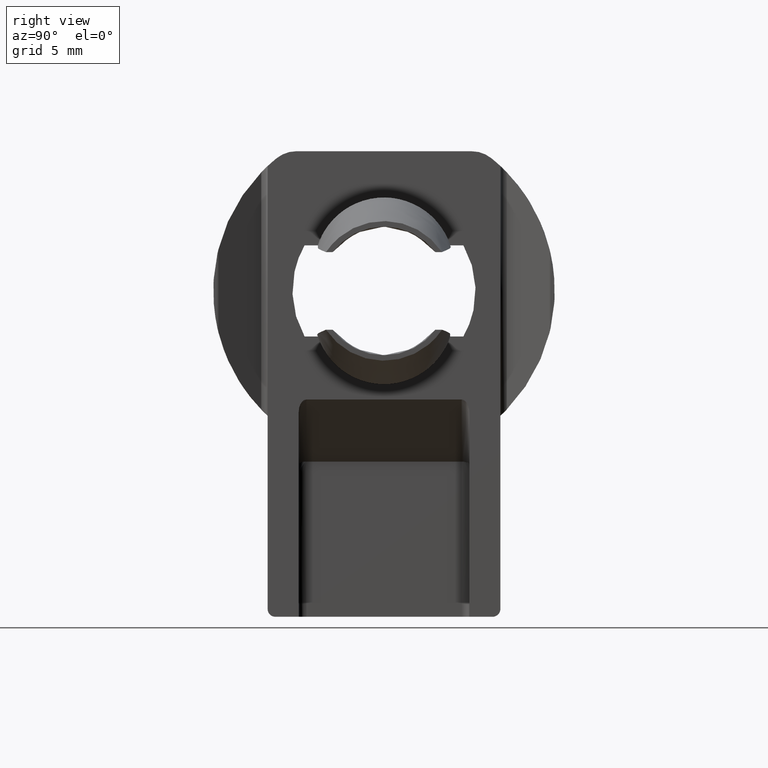
[diagram: clean part render]
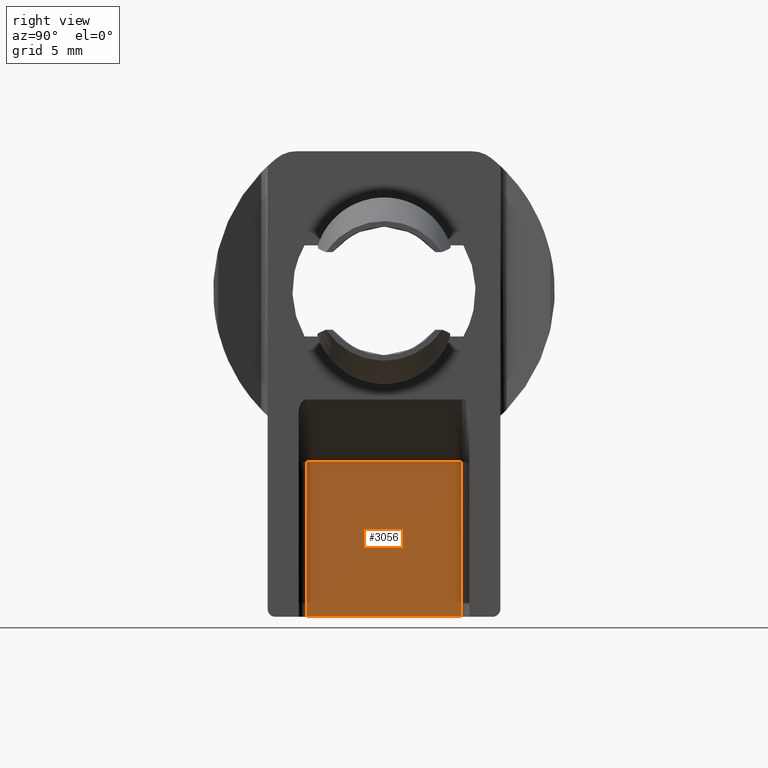
[diagram: same view with one face highlighted and labeled with its STEP entity id]
A machine part, right view. The second image highlights one B-rep face of the part: STEP entity #3056.
In plain terms, the highlighted face is a freeform B-spline surface patch.
Its self-contained STEP definition (entity closure, byte-faithful):
#1717=CARTESIAN_POINT('',(-3.0,-4.999999999999890,-11.0));
#1718=VERTEX_POINT('',#1717);
#1778=CARTESIAN_POINT('',(-3.0,-4.999999999999890,-21.0));
#1779=VERTEX_POINT('',#1778);
#1797=CARTESIAN_POINT('',(-3.0,-4.999999999999890,-11.0));
#1798=CARTESIAN_POINT('',(-3.0,-4.999999999999890,-21.0));
#1799=QUASI_UNIFORM_CURVE('',1,(#1797,#1798),.UNSPECIFIED.,.F.,.U.);
#1800=EDGE_CURVE('',#1718,#1779,#1799,.T.);
#1825=CARTESIAN_POINT('',(-3.0,5.000001000000090,-11.0));
#1826=VERTEX_POINT('',#1825);
#1888=CARTESIAN_POINT('',(-3.0,5.000000999999999,-21.0));
#1889=VERTEX_POINT('',#1888);
#1909=CARTESIAN_POINT('',(-3.0,5.000000999999999,-21.0));
#1910=CARTESIAN_POINT('',(-3.0,5.000001000000090,-11.0));
#1911=QUASI_UNIFORM_CURVE('',1,(#1909,#1910),.UNSPECIFIED.,.F.,.U.);
#1912=EDGE_CURVE('',#1889,#1826,#1911,.T.);
#3026=CARTESIAN_POINT('',(-3.0,5.000001000000090,-11.0));
#3027=CARTESIAN_POINT('',(-3.0,-4.999999999999890,-11.0));
#3028=QUASI_UNIFORM_CURVE('',1,(#3026,#3027),.UNSPECIFIED.,.F.,.U.);
#3029=EDGE_CURVE('',#1826,#1718,#3028,.T.);
#3041=CARTESIAN_POINT('',(-3.0,-5.499500030567947,-10.500500019381940));
#3042=CARTESIAN_POINT('',(-3.0,-5.499500030567947,-21.499500248838959));
#3043=CARTESIAN_POINT('',(-3.0,5.499501298789074,-10.500500019381940));
#3044=CARTESIAN_POINT('',(-3.0,5.499501298789074,-21.499500248838959));
#3045=B_SPLINE_SURFACE_WITH_KNOTS('',1,1,((#3041,#3043),(#3042,#3044)),.UNSPECIFIED.,.F.,.F.,.U.,(2,2),(2,2),(0.0,10.999000229457019),(0.0,10.999001329357020),.UNSPECIFIED.);
#3046=CARTESIAN_POINT('',(-3.0,5.000000999999999,-21.0));
#3047=CARTESIAN_POINT('',(-3.0,-4.999999999999890,-21.0));
#3048=QUASI_UNIFORM_CURVE('',1,(#3046,#3047),.UNSPECIFIED.,.F.,.U.);
#3049=EDGE_CURVE('',#1889,#1779,#3048,.T.);
#3050=ORIENTED_EDGE('',*,*,#3049,.F.);
#3051=ORIENTED_EDGE('',*,*,#1912,.T.);
#3052=ORIENTED_EDGE('',*,*,#3029,.T.);
#3053=ORIENTED_EDGE('',*,*,#1800,.T.);
#3054=EDGE_LOOP('',(#3050,#3051,#3052,#3053));
#3055=FACE_OUTER_BOUND('',#3054,.T.);
#3056=ADVANCED_FACE('',(#3055),#3045,.T.);